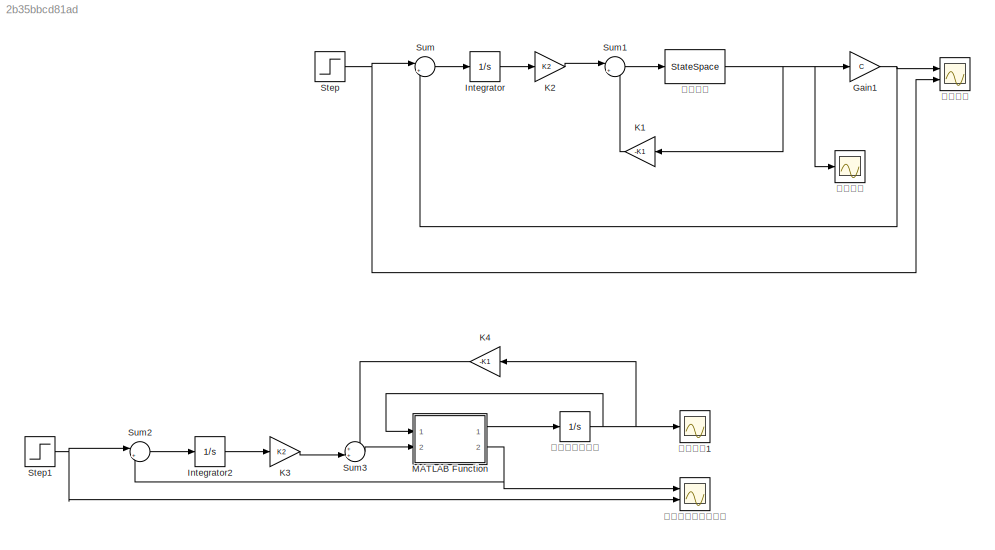
MODEL slx_2b35bbcd81ad
KIND model
CONFIG AbsTol = auto
CONFIG FixedStep = auto
CONFIG MaxStep = auto
CONFIG MinStep = auto
CONFIG RelTol = 1e-3
CONFIG SampleTimeConstraint = Unconstrained
CONFIG Solver = VariableStepAuto
CONFIG SolverMode = SingleTasking
CONFIG SolverName = VariableStepAuto
CONFIG StartTime = 0.0
CONFIG StopTime = 50
BLOCK [Gain] Gain1
  Gain = C
  Multiplication = Matrix(K*u)
BLOCK [Integrator] Integrator
  InitialCondition = [0]
  Ports = [1, 1]
BLOCK [Integrator] Integrator2
  InitialCondition = [0]
  Ports = [1, 1]
BLOCK [Gain] K1
  Gain = -K1
  Multiplication = Matrix(K*u)
BLOCK [Gain] K2
  Gain = K2
  Multiplication = Matrix(K*u)
BLOCK [Gain] K3
  Gain = K2
  Multiplication = Matrix(K*u)
BLOCK [Gain] K4
  Gain = -K1
  Multiplication = Matrix(K*u)
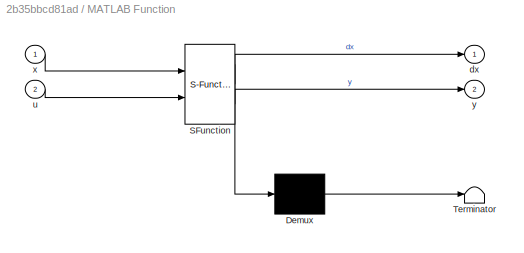
BLOCK [SubSystem] MATLAB Function
  ErrorFcn = Stateflow.Translate.translate
  PermitHierarchicalResolution = ExplicitOnly
  Ports = [2, 2]
  RequestExecContextInheritance = off
  SFBlockType = MATLAB Function
  TreatAsAtomicUnit = on
BLOCK [Demux] MATLAB Function/ Demux 
  Outputs = 1
  Ports = [1, 1]
BLOCK [S-Function] MATLAB Function/ SFunction 
  EnableBusSupport = on
  FunctionName = sf_sfun
  PortCounts = [2 3]
  Ports = [2, 3]
  SFunctionDeploymentMode = off
  Tag = Stateflow S-Function Daolibai_design_SFandPIOFtu 2
BLOCK [Terminator] MATLAB Function/ Terminator 
BLOCK [Outport] MATLAB Function/dx
BLOCK [Inport] MATLAB Function/u
  Port = 2
BLOCK [Inport] MATLAB Function/x
BLOCK [Outport] MATLAB Function/y
  Port = 2
BLOCK [Step] Step
  SampleTime = 0
BLOCK [Step] Step1
  SampleTime = 0
BLOCK [Sum] Sum
  Inputs = |+-
  Ports = [2, 1]
BLOCK [Sum] Sum1
  Inputs = |++
  Ports = [2, 1]
BLOCK [Sum] Sum2
  Inputs = |+-
  Ports = [2, 1]
BLOCK [Sum] Sum3
  Inputs = ++|
  Ports = [2, 1]
BLOCK [StateSpace] 状态变量
  A = A
  B = B
  C = eye(4)
  D = [0;0;0;0]
  Ports = [1, 1]
  X0 = Init
BLOCK [Scope] 状态响应
  Floating = off
  NumInputPorts = 1
  Ports = [1]
  ScopeSpecificationString = Simulink.scopes.TimeScopeBlockCfg('CurrentConfiguration', extmgr.ConfigurationSet(extmgr.Configuration('Core','General UI',true,'FigureColor',[0.941176470588235 0.941176470588235 0.941176470588235]),extmgr.Configuration('Core','Source UI',true),extmgr.Configuration('Sources','WiredSimulink',true,'DataLoggingVariableName','ScopeData1'),extmgr.Configuration('Visuals','Time Domain',true,'SerializedDi...<+1741ch>
BLOCK [Scope] 状态响应1
  Floating = off
  NumInputPorts = 1
  Ports = [1]
  ScopeSpecificationString = Simulink.scopes.TimeScopeBlockCfg('CurrentConfiguration', extmgr.ConfigurationSet(extmgr.Configuration('Core','General UI',true,'FigureColor',[0.941176470588235 0.941176470588235 0.941176470588235]),extmgr.Configuration('Core','Source UI',true),extmgr.Configuration('Sources','WiredSimulink',true,'DataLoggingVariableName','ScopeData2'),extmgr.Configuration('Visuals','Time Domain',true,'SerializedDi...<+1734ch>
BLOCK [Scope] 输出响应
  Floating = off
  NumInputPorts = 2
  Ports = [2]
  ScopeSpecificationString = Simulink.scopes.TimeScopeBlockCfg('CurrentConfiguration', extmgr.ConfigurationSet(extmgr.Configuration('Core','General UI',true,'FigureColor',[0.941176470588235 0.941176470588235 0.941176470588235]),extmgr.Configuration('Core','Source UI',true),extmgr.Configuration('Sources','WiredSimulink',true),extmgr.Configuration('Visuals','Time Domain',true,'SerializedDisplays',{struct('MinYLimReal','-0.22272...<+1773ch>
BLOCK [Integrator] 非线性系统状态
  InitialCondition = Init
  Ports = [1, 1]
BLOCK [Scope] 非线性系统输出响应
  Floating = off
  NumInputPorts = 2
  Ports = [2]
  ScopeSpecificationString = Simulink.scopes.TimeScopeBlockCfg('CurrentConfiguration', extmgr.ConfigurationSet(extmgr.Configuration('Core','General UI',true,'FigureColor',[0.941176470588235 0.941176470588235 0.941176470588235]),extmgr.Configuration('Core','Source UI',true),extmgr.Configuration('Sources','WiredSimulink',true,'DataLoggingVariableName','ScopeData1'),extmgr.Configuration('Visuals','Time Domain',true,'SerializedDi...<+1872ch>
NET Gain1:1 -> Sum:2, 输出响应:1
LINE Integrator2:1 -> K3:1
LINE Integrator:1 -> K2:1
LINE K1:1 -> Sum1:2
LINE K2:1 -> Sum1:1
LINE K3:1 -> Sum3:2
LINE K4:1 -> Sum3:1
LINE MATLAB Function:1 -> 非线性系统状态:1
NET MATLAB Function:2 -> Sum2:2, 非线性系统输出响应:1
NET Step1:1 -> Sum2:1, 非线性系统输出响应:2
NET Step:1 -> Sum:1, 输出响应:2
LINE Sum1:1 -> 状态变量:1
LINE Sum2:1 -> Integrator2:1
LINE Sum3:1 -> MATLAB Function:2
LINE Sum:1 -> Integrator:1
NET 状态变量:1 -> Gain1:1, K1:1, 状态响应:1
NET 非线性系统状态:1 -> K4:1, MATLAB Function:1, 状态响应1:1
note: NET lines group one-source signal fan-out (src -> all destinations, sorted); 1:1 wires keep LINE
CHART MATLAB Function states=1 transitions=1
  STATE_LABEL 'eML_blk_kernel()'
  STATE_LABEL 'SCRIPT:\nfunction [dx,y] = fcn(x,u)\nM = 1;\nm = 0.1;\nl = 0.5;\ng = 9.8;\nx1=x(1);\nx2=x(2);\nx3=x(3);\nx4=x(4);\ndx1 = x2;\ndx2 =(u + m*l*x4*x4*sin(x3) - m*g*sin(x3)*cos(x3))/(M + m - m*cos(x3)*cos(x3));\ndx3 = x4;\ndx4 =(-u*cos(x3) + (M+m)*g*sin(x3) - m*l*x4*x4*sin(x3)*cos(x3))/((M+m)*l - m*l*cos(x3)*cos(x3));\ndx = [dx1;dx2;dx3;dx4];\ny = x1;'
